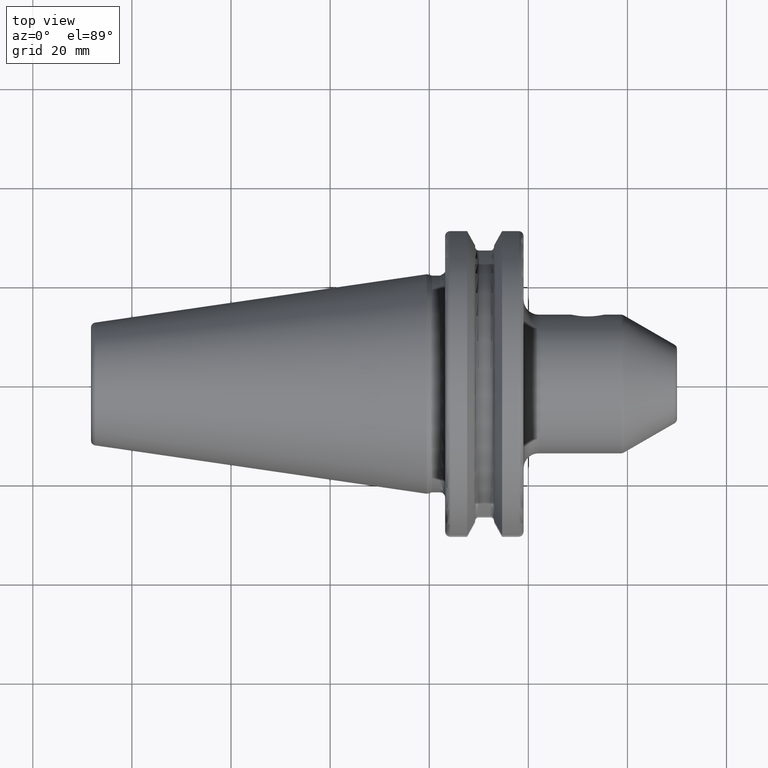
[diagram: clean part render]
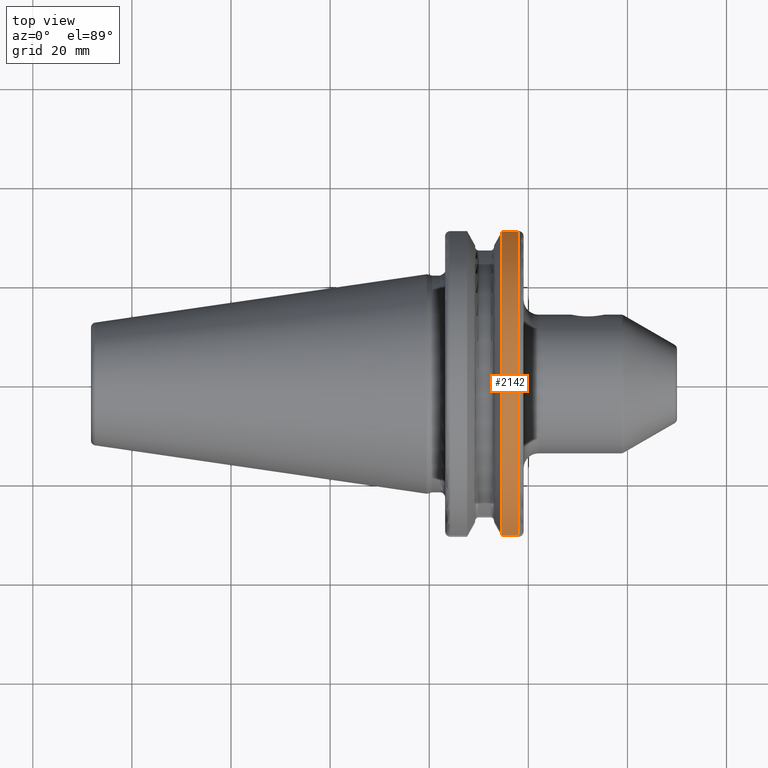
[diagram: same view with one face highlighted and labeled with its STEP entity id]
A machine part, top view. The second image highlights one B-rep face of the part: STEP entity #2142.
In plain terms, the highlighted cylindrical surface (partial cylindrical patch) has radius 31.7625 mm, axis along (1, 0, 0).
Its self-contained STEP definition (entity closure, byte-faithful):
#393=CARTESIAN_POINT('',(1.470405352042E1,3.071231684927E1,8.1E0));
#405=CARTESIAN_POINT('',(1.470405352042E1,-3.071231684927E1,8.1E0));
#425=DIRECTION('',(1.E0,0.E0,0.E0));
#426=VECTOR('',#425,3.345946479578E0);
#427=CARTESIAN_POINT('',(1.470405352042E1,3.071231684927E1,8.1E0));
#428=LINE('',#427,#426);
#429=CARTESIAN_POINT('',(1.805E1,0.E0,0.E0));
#430=DIRECTION('',(1.E0,0.E0,0.E0));
#431=DIRECTION('',(0.E0,9.669363825036E-1,2.550177095632E-1));
#432=AXIS2_PLACEMENT_3D('',#429,#430,#431);
#434=DIRECTION('',(1.E0,0.E0,0.E0));
#435=VECTOR('',#434,3.345946479578E0);
#436=CARTESIAN_POINT('',(1.470405352042E1,-3.071231684927E1,8.1E0));
#437=LINE('',#436,#435);
#438=CARTESIAN_POINT('',(1.470405352042E1,0.E0,0.E0));
#439=DIRECTION('',(1.E0,0.E0,0.E0));
#440=DIRECTION('',(0.E0,9.669363825036E-1,2.550177095632E-1));
#441=AXIS2_PLACEMENT_3D('',#438,#439,#440);
#1454=VERTEX_POINT('',#393);
#1455=VERTEX_POINT('',#405);
#1486=CARTESIAN_POINT('',(1.805E1,3.071231684927E1,8.1E0));
#1487=VERTEX_POINT('',#1486);
#1490=CARTESIAN_POINT('',(1.805E1,-3.071231684927E1,8.1E0));
#1491=VERTEX_POINT('',#1490);
#2130=CARTESIAN_POINT('',(-7.2615E1,0.E0,0.E0));
#2131=DIRECTION('',(1.E0,0.E0,0.E0));
#2132=DIRECTION('',(0.E0,-1.E0,0.E0));
#2133=AXIS2_PLACEMENT_3D('',#2130,#2131,#2132);
#2134=CYLINDRICAL_SURFACE('',#2133,3.17625E1);
#2135=ORIENTED_EDGE('',*,*,#1960,.T.);
#2137=ORIENTED_EDGE('',*,*,#2136,.T.);
#2138=ORIENTED_EDGE('',*,*,#2005,.F.);
#2139=ORIENTED_EDGE('',*,*,#2110,.F.);
#2140=EDGE_LOOP('',(#2135,#2137,#2138,#2139));
#2141=FACE_OUTER_BOUND('',#2140,.F.);
#2142=ADVANCED_FACE('',(#2141),#2134,.T.);
#433=CIRCLE('',#432,3.17625E1);
#442=CIRCLE('',#441,3.17625E1);
#1960=EDGE_CURVE('',#1454,#1487,#428,.T.);
#2005=EDGE_CURVE('',#1455,#1491,#437,.T.);
#2110=EDGE_CURVE('',#1454,#1455,#442,.T.);
#2136=EDGE_CURVE('',#1487,#1491,#433,.T.);